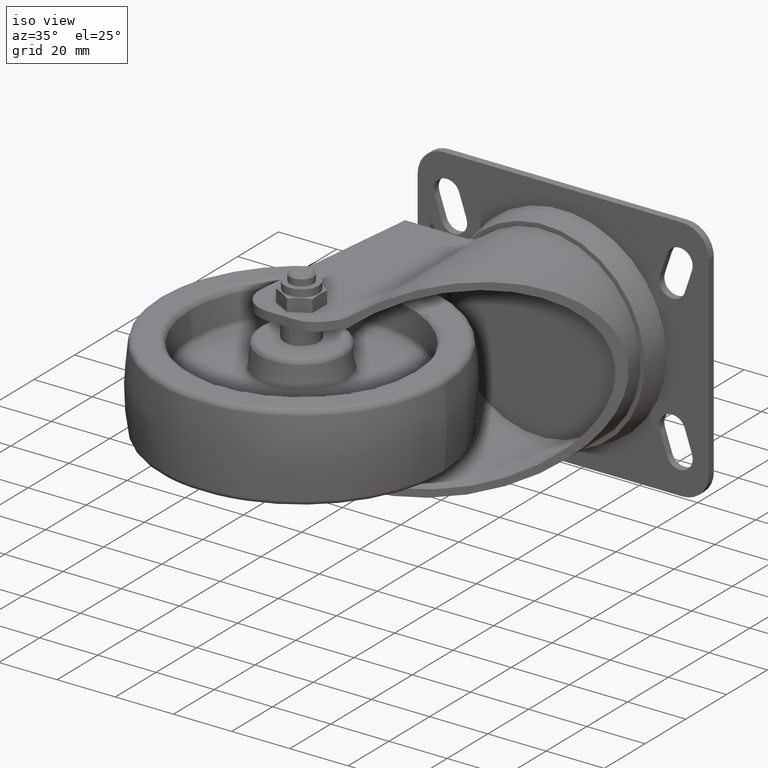
[diagram: clean part render]
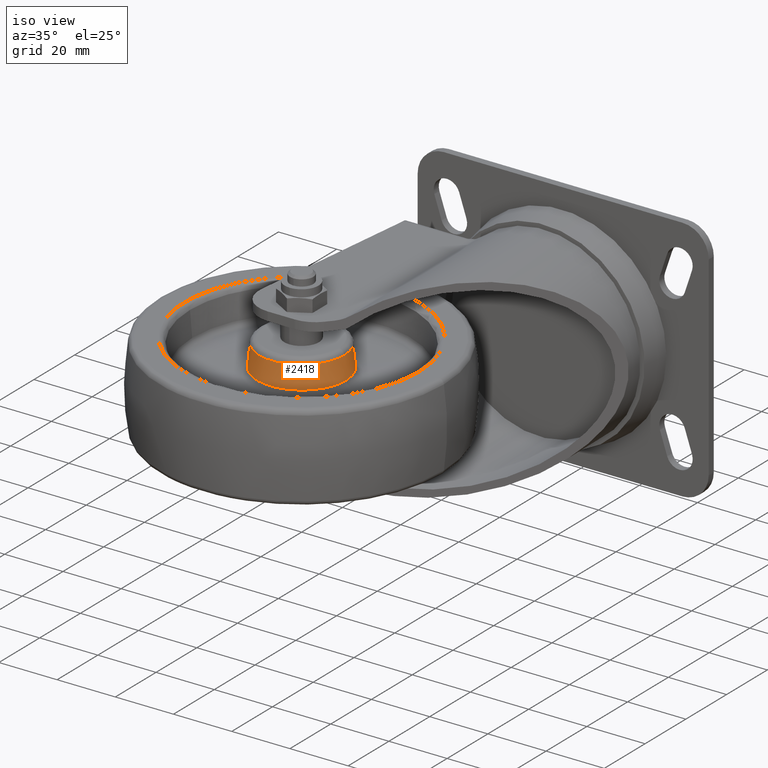
[diagram: same view with one face highlighted and labeled with its STEP entity id]
A machine part, iso view. The second image highlights one B-rep face of the part: STEP entity #2418.
In plain terms, the highlighted conical surface has half-angle 5 deg.
Its self-contained STEP definition (entity closure, byte-faithful):
#62=CONICAL_SURFACE('',#2722,14.989258292807,0.0872664625997165);
#288=FACE_OUTER_BOUND('',#448,.T.);
#448=EDGE_LOOP('',(#2044,#2045,#2046,#2047,#2048,#2049));
#608=CIRCLE('',#2720,15.3187895374654);
#609=CIRCLE('',#2721,15.3187895374654);
#610=CIRCLE('',#2723,14.6597270481486);
#611=CIRCLE('',#2724,14.6597270481486);
#758=LINE('',#4397,#892);
#892=VECTOR('',#3412,14.989258292807);
#1092=VERTEX_POINT('',#4390);
#1093=VERTEX_POINT('',#4392);
#1094=VERTEX_POINT('',#4396);
#1095=VERTEX_POINT('',#4398);
#1413=EDGE_CURVE('',#1092,#1093,#608,.T.);
#1414=EDGE_CURVE('',#1093,#1092,#609,.T.);
#1415=EDGE_CURVE('',#1093,#1094,#758,.T.);
#1416=EDGE_CURVE('',#1094,#1095,#610,.T.);
#1417=EDGE_CURVE('',#1095,#1094,#611,.T.);
#2044=ORIENTED_EDGE('',*,*,#1414,.F.);
#2045=ORIENTED_EDGE('',*,*,#1415,.T.);
#2046=ORIENTED_EDGE('',*,*,#1416,.T.);
#2047=ORIENTED_EDGE('',*,*,#1417,.T.);
#2048=ORIENTED_EDGE('',*,*,#1415,.F.);
#2049=ORIENTED_EDGE('',*,*,#1413,.F.);
#2418=ADVANCED_FACE('',(#288),#62,.T.);
#2720=AXIS2_PLACEMENT_3D('',#4393,#3406,#3407);
#2721=AXIS2_PLACEMENT_3D('',#4394,#3408,#3409);
#2722=AXIS2_PLACEMENT_3D('',#4395,#3410,#3411);
#2723=AXIS2_PLACEMENT_3D('',#4399,#3413,#3414);
#2724=AXIS2_PLACEMENT_3D('',#4400,#3415,#3416);
#3406=DIRECTION('center_axis',(0.,0.,-1.));
#3407=DIRECTION('ref_axis',(1.,0.,0.));
#3408=DIRECTION('center_axis',(0.,0.,-1.));
#3409=DIRECTION('ref_axis',(1.,0.,0.));
#3410=DIRECTION('center_axis',(0.,0.,-1.));
#3411=DIRECTION('ref_axis',(1.,0.,0.));
#3412=DIRECTION('',(0.0871557427476582,-1.0673500138323E-17,0.996194698091746));
#3413=DIRECTION('center_axis',(0.,0.,-1.));
#3414=DIRECTION('ref_axis',(1.,0.,0.));
#3415=DIRECTION('center_axis',(0.,0.,-1.));
#3416=DIRECTION('ref_axis',(1.,0.,0.));
#4390=CARTESIAN_POINT('',(15.3187895374654,-1.8760106573869E-15,5.64119276181662));
#4392=CARTESIAN_POINT('',(-15.3187895374654,1.87594870004479E-15,5.64119276181662));
#4393=CARTESIAN_POINT('Origin',(0.,0.,5.64119276181662));
#4394=CARTESIAN_POINT('Origin',(0.,0.,5.64119276181662));
#4395=CARTESIAN_POINT('Origin',(0.,0.,9.40775212365597));
#4396=CARTESIAN_POINT('',(-14.6597270481486,-1.79523948884646E-15,13.1743114854953));
#4397=CARTESIAN_POINT('',(-14.989258292807,1.8356547189879E-15,9.40775212365597));
#4398=CARTESIAN_POINT('',(14.6597270481486,-1.79529878058891E-15,13.1743114854953));
#4399=CARTESIAN_POINT('Origin',(0.,0.,13.1743114854953));
#4400=CARTESIAN_POINT('Origin',(0.,0.,13.1743114854953));